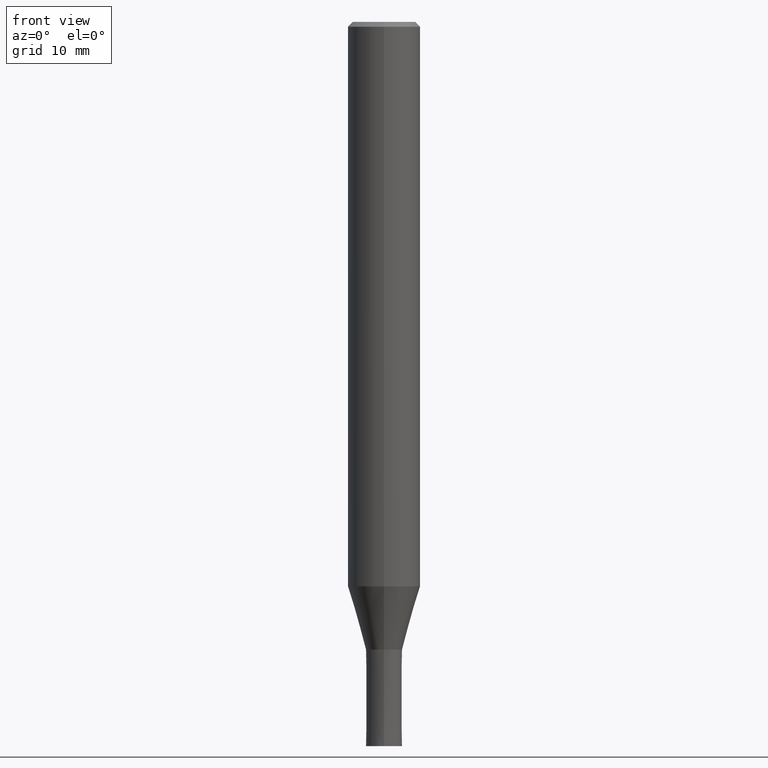
[diagram: clean part render]
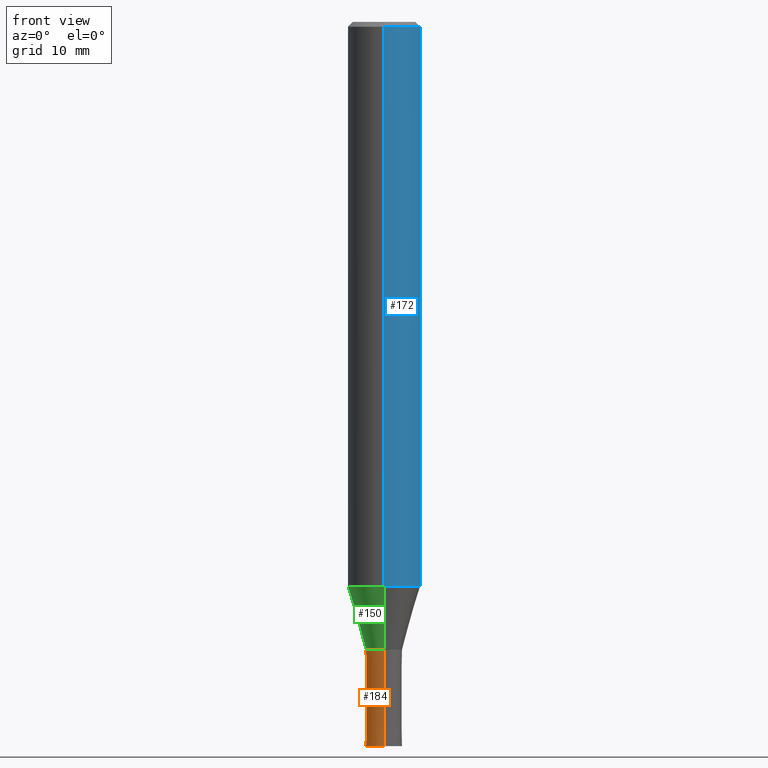
[diagram: same view with three faces highlighted in distinct colors, each labeled with its STEP entity id]
A machine part, front view with three faces highlighted in distinct colors.
Their STEP definitions:

[orange] entity #184 — the highlighted conical surface has half-angle 0.001 deg.
#92=EDGE_CURVE('',#170,#130,#214,.T.);
#98=EDGE_CURVE('',#144,#170,#220,.T.);
#112=EDGE_CURVE('',#182,#130,#236,.T.);
#116=EDGE_CURVE('',#182,#144,#240,.T.);
#130=VERTEX_POINT('',#255);
#144=VERTEX_POINT('',#270);
#170=VERTEX_POINT('',#302);
#182=VERTEX_POINT('',#316);
#184=ADVANCED_FACE('',(#318),#319,.T.);
#214=LINE('',#345,#346);
#220=CIRCLE('',#354,1.4999);
#236=CIRCLE('',#374,1.5);
#240=LINE('',#379,#380);
#255=CARTESIAN_POINT('',(0.0,1.5,-60.0));
#270=CARTESIAN_POINT('',(1.83678707009818E-016,-1.4999,-52.0));
#302=CARTESIAN_POINT('',(0.0,1.4999,-52.0));
#316=CARTESIAN_POINT('',(1.83690953073357E-016,-1.5,-60.0));
#318=FACE_OUTER_BOUND('',#473,.T.);
#319=CONICAL_SURFACE('',#474,1.49995,1.24999999993476E-005);
#345=CARTESIAN_POINT('',(-1.83684830041587E-016,1.49995,-56.0));
#346=VECTOR('',#488,1.0);
#354=AXIS2_PLACEMENT_3D('',#491,#492,#493);
#374=AXIS2_PLACEMENT_3D('',#517,#518,#519);
#379=CARTESIAN_POINT('',(1.83684830041588E-016,-1.49995,-56.0));
#380=VECTOR('',#520,1.0);
#473=EDGE_LOOP('',(#617,#618,#619,#620));
#474=AXIS2_PLACEMENT_3D('',#621,#622,#623);
#488=DIRECTION('',(-1.53075794215821E-021,1.24999999990221E-005,-0.999999999921875));
#491=CARTESIAN_POINT('',(0.0,0.0,-52.0));
#492=DIRECTION('',(0.0,0.0,-1.0));
#493=DIRECTION('',(0.0,1.0,0.0));
#517=CARTESIAN_POINT('',(0.0,0.0,-60.0));
#518=DIRECTION('',(0.0,0.0,-1.0));
#519=DIRECTION('',(0.0,1.0,0.0));
#520=DIRECTION('',(-1.53075794215821E-021,1.24999999990221E-005,0.999999999921875));
#617=ORIENTED_EDGE('',*,*,#92,.T.);
#618=ORIENTED_EDGE('',*,*,#112,.F.);
#619=ORIENTED_EDGE('',*,*,#116,.T.);
#620=ORIENTED_EDGE('',*,*,#98,.T.);
#621=CARTESIAN_POINT('',(0.0,0.0,-56.0));
#622=DIRECTION('',(0.0,-0.0,-1.0));
#623=DIRECTION('',(0.0,1.0,0.0));

[blue] entity #172 — the highlighted cylindrical surface (edge-blend (fillet) strip) has radius 3 mm, axis along (-0, -0, 1).
#88=EDGE_CURVE('',#132,#124,#210,.T.);
#106=EDGE_CURVE('',#132,#128,#230,.T.);
#124=VERTEX_POINT('',#249);
#128=VERTEX_POINT('',#253);
#132=VERTEX_POINT('',#257);
#136=EDGE_CURVE('',#124,#166,#261,.T.);
#138=EDGE_CURVE('',#166,#128,#263,.T.);
#166=VERTEX_POINT('',#298);
#172=ADVANCED_FACE('',(#304),#305,.T.);
#210=LINE('',#338,#339);
#230=CIRCLE('',#366,3.0);
#249=CARTESIAN_POINT('',(0.0,3.0,-46.769));
#253=CARTESIAN_POINT('',(3.67381906146713E-016,-3.0,-0.399999999999999));
#257=CARTESIAN_POINT('',(0.0,3.0,-0.399999999999999));
#261=CIRCLE('',#405,3.0);
#263=LINE('',#408,#409);
#298=CARTESIAN_POINT('',(3.67381906146713E-016,-3.0,-46.769));
#304=FACE_OUTER_BOUND('',#455,.T.);
#305=CYLINDRICAL_SURFACE('',#456,3.0);
#338=CARTESIAN_POINT('',(-3.67381906146713E-016,3.0,-23.5845));
#339=VECTOR('',#484,1.0);
#366=AXIS2_PLACEMENT_3D('',#511,#512,#513);
#405=AXIS2_PLACEMENT_3D('',#533,#534,#535);
#408=CARTESIAN_POINT('',(3.67381906146713E-016,-3.0,-23.5845));
#409=VECTOR('',#536,1.0);
#455=EDGE_LOOP('',(#594,#595,#596,#597));
#456=AXIS2_PLACEMENT_3D('',#598,#599,#600);
#484=DIRECTION('',(0.0,0.0,-1.0));
#511=CARTESIAN_POINT('',(0.0,0.0,-0.399999999999999));
#512=DIRECTION('',(0.0,0.0,-1.0));
#513=DIRECTION('',(0.0,1.0,0.0));
#533=CARTESIAN_POINT('',(0.0,0.0,-46.769));
#534=DIRECTION('',(0.0,0.0,-1.0));
#535=DIRECTION('',(0.0,1.0,0.0));
#536=DIRECTION('',(-0.0,-0.0,1.0));
#594=ORIENTED_EDGE('',*,*,#88,.F.);
#595=ORIENTED_EDGE('',*,*,#106,.T.);
#596=ORIENTED_EDGE('',*,*,#138,.F.);
#597=ORIENTED_EDGE('',*,*,#136,.F.);
#598=CARTESIAN_POINT('',(0.0,0.0,-23.5845));
#599=DIRECTION('',(-0.0,-0.0,1.0));
#600=DIRECTION('',(0.0,1.0,0.0));

[green] entity #150 — the highlighted conical surface has half-angle 16 deg.
#86=VERTEX_POINT('',#208);
#90=EDGE_CURVE('',#114,#86,#212,.T.);
#96=EDGE_CURVE('',#134,#114,#218,.T.);
#114=VERTEX_POINT('',#238);
#134=VERTEX_POINT('',#259);
#142=EDGE_CURVE('',#134,#156,#268,.T.);
#150=ADVANCED_FACE('',(#276),#277,.T.);
#156=VERTEX_POINT('',#285);
#176=EDGE_CURVE('',#86,#156,#309,.T.);
#208=CARTESIAN_POINT('',(0.0,2.99995,-46.769));
#212=CIRCLE('',#342,2.99995);
#218=LINE('',#350,#351);
#238=CARTESIAN_POINT('',(3.67375783114944E-016,-2.99995,-46.769));
#259=CARTESIAN_POINT('',(1.83684830041587E-016,-1.49995,-52.0));
#268=CIRCLE('',#415,1.49995);
#276=FACE_OUTER_BOUND('',#423,.T.);
#277=CONICAL_SURFACE('',#424,2.24995,0.279258842899557);
#285=CARTESIAN_POINT('',(0.0,1.49995,-52.0));
#309=LINE('',#462,#463);
#342=AXIS2_PLACEMENT_3D('',#485,#486,#487);
#350=CARTESIAN_POINT('',(2.75530306578266E-016,-2.24995,-49.3845));
#351=VECTOR('',#490,1.0);
#415=AXIS2_PLACEMENT_3D('',#545,#546,#547);
#423=EDGE_LOOP('',(#553,#554,#555,#556));
#424=AXIS2_PLACEMENT_3D('',#557,#558,#559);
#462=CARTESIAN_POINT('',(-2.75530306578266E-016,2.24995,-49.3845));
#463=VECTOR('',#604,1.0);
#485=CARTESIAN_POINT('',(0.0,0.0,-46.769));
#486=DIRECTION('',(0.0,0.0,-1.0));
#487=DIRECTION('',(0.0,1.0,0.0));
#490=DIRECTION('',(3.37554511665357E-017,-0.275643279664314,0.961259997282682));
#545=CARTESIAN_POINT('',(0.0,0.0,-52.0));
#546=DIRECTION('',(0.0,0.0,-1.0));
#547=DIRECTION('',(0.0,1.0,0.0));
#553=ORIENTED_EDGE('',*,*,#176,.T.);
#554=ORIENTED_EDGE('',*,*,#142,.F.);
#555=ORIENTED_EDGE('',*,*,#96,.T.);
#556=ORIENTED_EDGE('',*,*,#90,.T.);
#557=CARTESIAN_POINT('',(0.0,0.0,-49.3845));
#558=DIRECTION('',(-0.0,-0.0,1.0));
#559=DIRECTION('',(0.0,1.0,0.0));
#604=DIRECTION('',(3.37554511665357E-017,-0.275643279664314,-0.961259997282682));